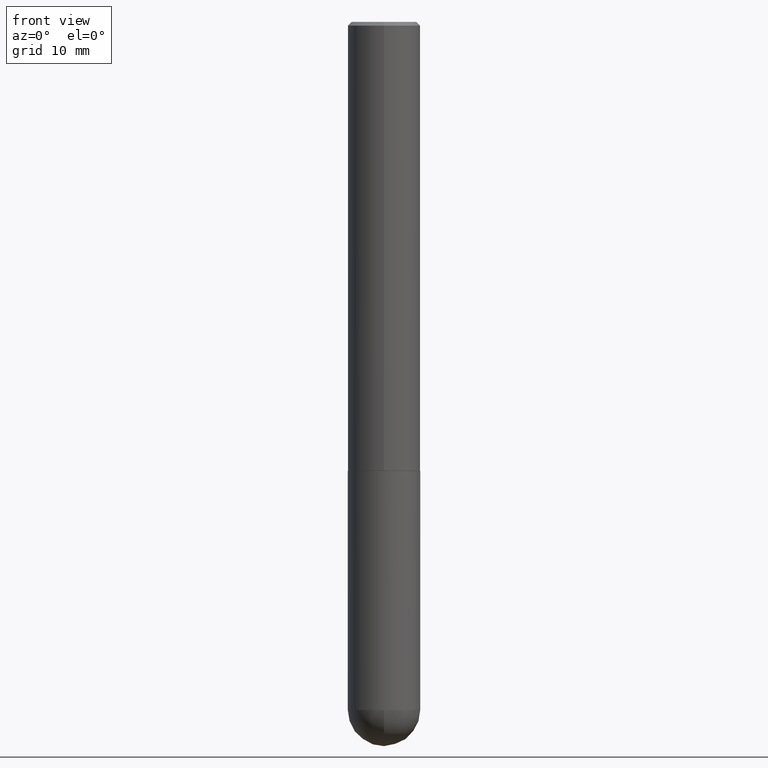
[diagram: clean part render]
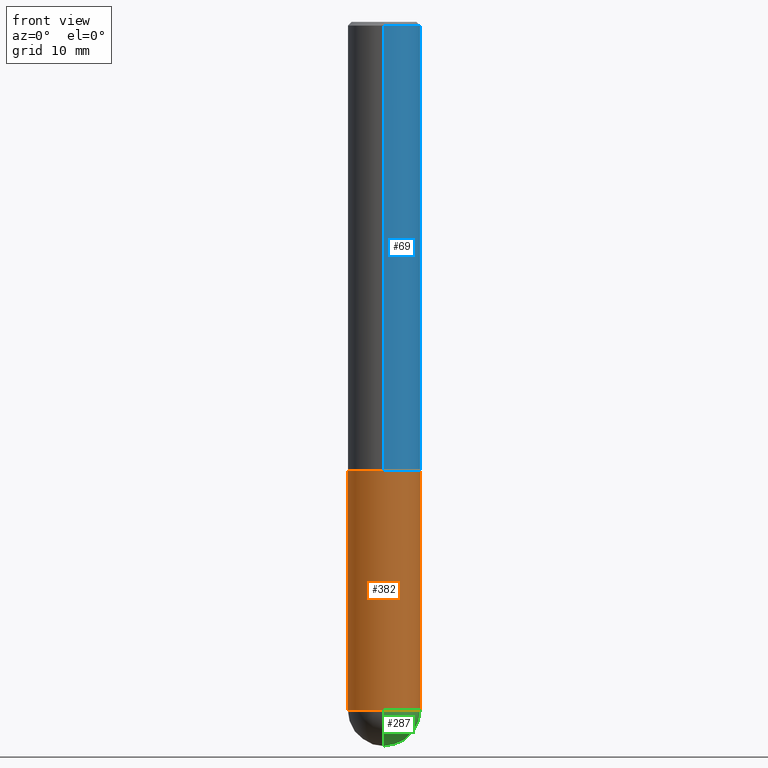
[diagram: same view with three faces highlighted in distinct colors, each labeled with its STEP entity id]
A machine part, front view with three faces highlighted in distinct colors.
Their STEP definitions:

[orange] entity #382 — the highlighted cylindrical surface (edge-blend (fillet) strip) has radius 5 mm, axis along (-0, 0, 1).
#1 = VERTEX_POINT ( 'NONE', #268 ) ;
#3 = EDGE_LOOP ( 'NONE', ( #138, #84, #357, #282, #387 ) ) ;
#18 = LINE ( 'NONE', #329, #206 ) ;
#30 = CARTESIAN_POINT ( 'NONE',  ( -0.1968499999999999694, -9.391806989384456184E-15, -3.740150000000000752 ) ) ;
#34 = AXIS2_PLACEMENT_3D ( 'NONE', #203, #118, #163 ) ;
#42 = CIRCLE ( 'NONE', #283, 0.1968499999999999694 ) ;
#54 = CIRCLE ( 'NONE', #408, 0.1968499999999999694 ) ;
#72 = DIRECTION ( 'NONE',  ( 1.000000000000000000, -6.982962677686269866E-15, 0.000000000000000000 ) ) ;
#75 = DIRECTION ( 'NONE',  ( 1.000000000000000000, -6.982962677686269866E-15, 0.000000000000000000 ) ) ;
#83 = FACE_OUTER_BOUND ( 'NONE', #3, .T. ) ;
#84 = ORIENTED_EDGE ( 'NONE', *, *, #294, .T. ) ;
#100 = CIRCLE ( 'NONE', #188, 0.1968500000000000250 ) ;
#101 = EDGE_CURVE ( 'NONE', #358, #205, #42, .T. ) ;
#103 = CARTESIAN_POINT ( 'NONE',  ( 0.1968500000000000250, -9.896953003084774574E-15, -2.440900000000000070 ) ) ;
#114 = DIRECTION ( 'NONE',  ( 1.000000000000000000, -6.982962677686262766E-15, 0.000000000000000000 ) ) ;
#117 = CARTESIAN_POINT ( 'NONE',  ( 0.1968499999999999694, -1.216510656783075637E-14, -3.740150000000000752 ) ) ;
#118 = DIRECTION ( 'NONE',  ( -2.445468806185136597E-29, 3.491481338843145583E-15, 1.000000000000000000 ) ) ;
#137 = CYLINDRICAL_SURFACE ( 'NONE', #34, 0.1968499999999999694 ) ;
#138 = ORIENTED_EDGE ( 'NONE', *, *, #399, .F. ) ;
#144 = DIRECTION ( 'NONE',  ( -2.445468806185136877E-29, 3.491481338843145188E-15, 1.000000000000000000 ) ) ;
#152 = EDGE_CURVE ( 'NONE', #1, #155, #100, .T. ) ;
#155 = VERTEX_POINT ( 'NONE', #103 ) ;
#163 = DIRECTION ( 'NONE',  ( 1.000000000000000000, -6.982962677686266711E-15, 4.876176775795935793E-29 ) ) ;
#170 = CARTESIAN_POINT ( 'NONE',  ( 9.146420155453340551E-29, -1.305866392947419340E-14, -3.740150000000000752 ) ) ;
#172 = CARTESIAN_POINT ( 'NONE',  ( 0.1968499999999999694, -1.374596203102541411E-15, 9.598753983154298056E-30 ) ) ;
#188 = AXIS2_PLACEMENT_3D ( 'NONE', #292, #221, #114 ) ;
#191 = LINE ( 'NONE', #172, #359 ) ;
#203 = CARTESIAN_POINT ( 'NONE',  ( 0.000000000000000000, 0.000000000000000000, 0.000000000000000000 ) ) ;
#205 = VERTEX_POINT ( 'NONE', #117 ) ;
#206 = VECTOR ( 'NONE', #372, 39.37007874015748143 ) ;
#212 = EDGE_CURVE ( 'NONE', #205, #155, #191, .T. ) ;
#221 = DIRECTION ( 'NONE',  ( -2.445468806185136597E-29, 3.491481338843145583E-15, 1.000000000000000000 ) ) ;
#229 = DIRECTION ( 'NONE',  ( -2.445468806185136597E-29, 3.491481338843145583E-15, 1.000000000000000000 ) ) ;
#268 = CARTESIAN_POINT ( 'NONE',  ( -0.1968500000000000250, -9.391806989384456184E-15, -2.440900000000000070 ) ) ;
#280 = CARTESIAN_POINT ( 'NONE',  ( -1.398703375343667858E-15, -0.1968500000000133754, -3.740150000000000308 ) ) ;
#282 = ORIENTED_EDGE ( 'NONE', *, *, #212, .T. ) ;
#283 = AXIS2_PLACEMENT_3D ( 'NONE', #170, #301, #75 ) ;
#292 = CARTESIAN_POINT ( 'NONE',  ( 5.969144809017299038E-29, -8.522356799982232966E-15, -2.440900000000000070 ) ) ;
#294 = EDGE_CURVE ( 'NONE', #330, #358, #54, .T. ) ;
#301 = DIRECTION ( 'NONE',  ( -2.445468806185136597E-29, 3.491481338843145583E-15, 1.000000000000000000 ) ) ;
#329 = CARTESIAN_POINT ( 'NONE',  ( -0.1968499999999999694, 1.398703375343756999E-15, -9.682923725166782276E-30 ) ) ;
#330 = VERTEX_POINT ( 'NONE', #30 ) ;
#340 = CARTESIAN_POINT ( 'NONE',  ( 9.146420155453340551E-29, -1.305866392947419340E-14, -3.740150000000000752 ) ) ;
#357 = ORIENTED_EDGE ( 'NONE', *, *, #101, .T. ) ;
#358 = VERTEX_POINT ( 'NONE', #280 ) ;
#359 = VECTOR ( 'NONE', #144, 39.37007874015748143 ) ;
#372 = DIRECTION ( 'NONE',  ( -2.445468806185136877E-29, 3.491481338843145188E-15, 1.000000000000000000 ) ) ;
#382 = ADVANCED_FACE ( 'NONE', ( #83 ), #137, .T. ) ;
#387 = ORIENTED_EDGE ( 'NONE', *, *, #152, .F. ) ;
#399 = EDGE_CURVE ( 'NONE', #330, #1, #18, .T. ) ;
#408 = AXIS2_PLACEMENT_3D ( 'NONE', #340, #229, #72 ) ;

[blue] entity #69 — the highlighted cylindrical surface (edge-blend (fillet) strip) has radius 5 mm, axis along (-0, 0, 1).
#2 = AXIS2_PLACEMENT_3D ( 'NONE', #226, #303, #145 ) ;
#9 = EDGE_CURVE ( 'NONE', #326, #388, #153, .T. ) ;
#15 = FACE_OUTER_BOUND ( 'NONE', #35, .T. ) ;
#17 = LINE ( 'NONE', #281, #244 ) ;
#35 = EDGE_LOOP ( 'NONE', ( #290, #393, #214, #318 ) ) ;
#41 = LINE ( 'NONE', #338, #309 ) ;
#48 = CARTESIAN_POINT ( 'NONE',  ( 1.374596203102542200E-15, 0.1968499999999999694, -0.02000000000000072900 ) ) ;
#53 = VERTEX_POINT ( 'NONE', #48 ) ;
#63 = VERTEX_POINT ( 'NONE', #342 ) ;
#69 = ADVANCED_FACE ( 'NONE', ( #15 ), #404, .T. ) ;
#85 = AXIS2_PLACEMENT_3D ( 'NONE', #119, #148, #199 ) ;
#119 = CARTESIAN_POINT ( 'NONE',  ( 0.000000000000000000, 0.000000000000000000, 0.000000000000000000 ) ) ;
#121 = CIRCLE ( 'NONE', #2, 0.1968500000000000527 ) ;
#145 = DIRECTION ( 'NONE',  ( -6.982962677686265133E-15, -1.000000000000000000, 3.491137977679279029E-15 ) ) ;
#148 = DIRECTION ( 'NONE',  ( -2.444480225679141495E-29, 3.492897042394238758E-15, 1.000000000000000000 ) ) ;
#153 = CIRCLE ( 'NONE', #182, 0.1968500000000003303 ) ;
#182 = AXIS2_PLACEMENT_3D ( 'NONE', #298, #259, #401 ) ;
#192 = CARTESIAN_POINT ( 'NONE',  ( 1.398703375343789145E-15, 0.1968499999999918093, -2.439900000000000624 ) ) ;
#199 = DIRECTION ( 'NONE',  ( -6.982962677686265133E-15, -1.000000000000000000, 3.492897042394238758E-15 ) ) ;
#211 = DIRECTION ( 'NONE',  ( -2.444480225679141495E-29, 3.492897042394238758E-15, 1.000000000000000000 ) ) ;
#214 = ORIENTED_EDGE ( 'NONE', *, *, #369, .F. ) ;
#226 = CARTESIAN_POINT ( 'NONE',  ( 4.888960451358293429E-31, -6.985794084788491174E-17, -0.02000000000000004205 ) ) ;
#244 = VECTOR ( 'NONE', #211, 39.37007874015748143 ) ;
#259 = DIRECTION ( 'NONE',  ( -2.444480225679141495E-29, 3.492897042394238758E-15, 1.000000000000000000 ) ) ;
#281 = CARTESIAN_POINT ( 'NONE',  ( -1.374596203102542594E-15, -0.1968500000000001915, 6.875767827953065398E-16 ) ) ;
#290 = ORIENTED_EDGE ( 'NONE', *, *, #9, .T. ) ;
#298 = CARTESIAN_POINT ( 'NONE',  ( 5.964287302634537555E-29, -8.522319493737701952E-15, -2.439899999999999736 ) ) ;
#303 = DIRECTION ( 'NONE',  ( -2.444480225679141495E-29, 3.492897042394238758E-15, 1.000000000000000000 ) ) ;
#309 = VECTOR ( 'NONE', #406, 39.37007874015748143 ) ;
#318 = ORIENTED_EDGE ( 'NONE', *, *, #324, .F. ) ;
#324 = EDGE_CURVE ( 'NONE', #326, #63, #17, .T. ) ;
#326 = VERTEX_POINT ( 'NONE', #355 ) ;
#338 = CARTESIAN_POINT ( 'NONE',  ( 1.398703375343758182E-15, 0.1968500000000001915, -6.875767827953065398E-16 ) ) ;
#342 = CARTESIAN_POINT ( 'NONE',  ( -1.350489030861325626E-15, -0.1968500000000001082, -0.01999999999999935510 ) ) ;
#355 = CARTESIAN_POINT ( 'NONE',  ( -1.374596203102484021E-15, -0.1968500000000088512, -2.439899999999998847 ) ) ;
#369 = EDGE_CURVE ( 'NONE', #63, #53, #121, .T. ) ;
#388 = VERTEX_POINT ( 'NONE', #192 ) ;
#393 = ORIENTED_EDGE ( 'NONE', *, *, #405, .T. ) ;
#401 = DIRECTION ( 'NONE',  ( -6.982962677686265133E-15, -1.000000000000000000, 4.163344669033668535E-15 ) ) ;
#404 = CYLINDRICAL_SURFACE ( 'NONE', #85, 0.1968500000000001915 ) ;
#405 = EDGE_CURVE ( 'NONE', #388, #53, #41, .T. ) ;
#406 = DIRECTION ( 'NONE',  ( -2.444480225679141495E-29, 3.492897042394238758E-15, 1.000000000000000000 ) ) ;

[green] entity #287 — the highlighted spherical surface has radius 5 mm.
#42 = CIRCLE ( 'NONE', #283, 0.1968499999999999694 ) ;
#46 = DIRECTION ( 'NONE',  ( 6.982962677686265922E-15, 1.000000000000000000, 0.000000000000000000 ) ) ;
#62 = AXIS2_PLACEMENT_3D ( 'NONE', #272, #154, #277 ) ;
#70 = CARTESIAN_POINT ( 'NONE',  ( 9.146420155453340551E-29, -1.305866392947419340E-14, -3.740150000000000752 ) ) ;
#75 = DIRECTION ( 'NONE',  ( 1.000000000000000000, -6.982962677686269866E-15, 0.000000000000000000 ) ) ;
#79 = DIRECTION ( 'NONE',  ( 1.000000000000000000, -6.982962677686269866E-15, 0.000000000000000000 ) ) ;
#101 = EDGE_CURVE ( 'NONE', #358, #205, #42, .T. ) ;
#107 = DIRECTION ( 'NONE',  ( -1.000000000000000000, 6.982962677686265922E-15, -4.883557194083113462E-29 ) ) ;
#110 = FACE_OUTER_BOUND ( 'NONE', #247, .T. ) ;
#112 = ORIENTED_EDGE ( 'NONE', *, *, #147, .T. ) ;
#117 = CARTESIAN_POINT ( 'NONE',  ( 0.1968499999999999694, -1.216510656783075637E-14, -3.740150000000000752 ) ) ;
#134 = CARTESIAN_POINT ( 'NONE',  ( 8.815300377539453183E-29, -1.353284629761424370E-14, -3.740150000000000308 ) ) ;
#139 = SPHERICAL_SURFACE ( 'NONE', #217, 0.1968500000000001360 ) ;
#147 = EDGE_CURVE ( 'NONE', #227, #234, #411, .T. ) ;
#154 = DIRECTION ( 'NONE',  ( -1.000000000000000000, 7.105427357601001070E-15, -4.926315508542082329E-29 ) ) ;
#168 = DIRECTION ( 'NONE',  ( 6.982962677686265922E-15, 1.000000000000000000, -2.775563112689114723E-15 ) ) ;
#170 = CARTESIAN_POINT ( 'NONE',  ( 9.146420155453340551E-29, -1.305866392947419340E-14, -3.740150000000000752 ) ) ;
#205 = VERTEX_POINT ( 'NONE', #117 ) ;
#217 = AXIS2_PLACEMENT_3D ( 'NONE', #134, #107, #168 ) ;
#223 = ORIENTED_EDGE ( 'NONE', *, *, #242, .F. ) ;
#227 = VERTEX_POINT ( 'NONE', #263 ) ;
#232 = DIRECTION ( 'NONE',  ( -2.445468806185136597E-29, 3.491481338843145583E-15, 1.000000000000000000 ) ) ;
#234 = VERTEX_POINT ( 'NONE', #371 ) ;
#242 = EDGE_CURVE ( 'NONE', #205, #234, #269, .T. ) ;
#246 = ORIENTED_EDGE ( 'NONE', *, *, #101, .F. ) ;
#247 = EDGE_LOOP ( 'NONE', ( #345, #112, #223, #246 ) ) ;
#253 = DIRECTION ( 'NONE',  ( 1.000000000000000000, -6.982962677686265922E-15, 4.883557194083112340E-29 ) ) ;
#263 = CARTESIAN_POINT ( 'NONE',  ( 9.305107886238245984E-29, -1.420809081304490838E-14, -3.937000000000000721 ) ) ;
#269 = CIRCLE ( 'NONE', #314, 0.1968499999999999694 ) ;
#272 = CARTESIAN_POINT ( 'NONE',  ( 8.815300377539453183E-29, -1.353284629761424370E-14, -3.740150000000000308 ) ) ;
#277 = DIRECTION ( 'NONE',  ( -7.105427357601001070E-15, -1.000000000000000000, 0.000000000000000000 ) ) ;
#280 = CARTESIAN_POINT ( 'NONE',  ( -1.398703375343667858E-15, -0.1968500000000133754, -3.740150000000000308 ) ) ;
#283 = AXIS2_PLACEMENT_3D ( 'NONE', #170, #301, #75 ) ;
#287 = ADVANCED_FACE ( 'NONE', ( #110 ), #139, .T. ) ;
#301 = DIRECTION ( 'NONE',  ( -2.445468806185136597E-29, 3.491481338843145583E-15, 1.000000000000000000 ) ) ;
#302 = AXIS2_PLACEMENT_3D ( 'NONE', #400, #253, #46 ) ;
#314 = AXIS2_PLACEMENT_3D ( 'NONE', #70, #232, #79 ) ;
#345 = ORIENTED_EDGE ( 'NONE', *, *, #347, .F. ) ;
#347 = EDGE_CURVE ( 'NONE', #227, #358, #378, .T. ) ;
#358 = VERTEX_POINT ( 'NONE', #280 ) ;
#371 = CARTESIAN_POINT ( 'NONE',  ( 1.374596203102631736E-15, 0.1968499999999867855, -3.740150000000001196 ) ) ;
#378 = CIRCLE ( 'NONE', #62, 0.1968500000000001360 ) ;
#400 = CARTESIAN_POINT ( 'NONE',  ( 8.815300377539453183E-29, -1.353284629761424370E-14, -3.740150000000000308 ) ) ;
#411 = CIRCLE ( 'NONE', #302, 0.1968500000000001360 ) ;